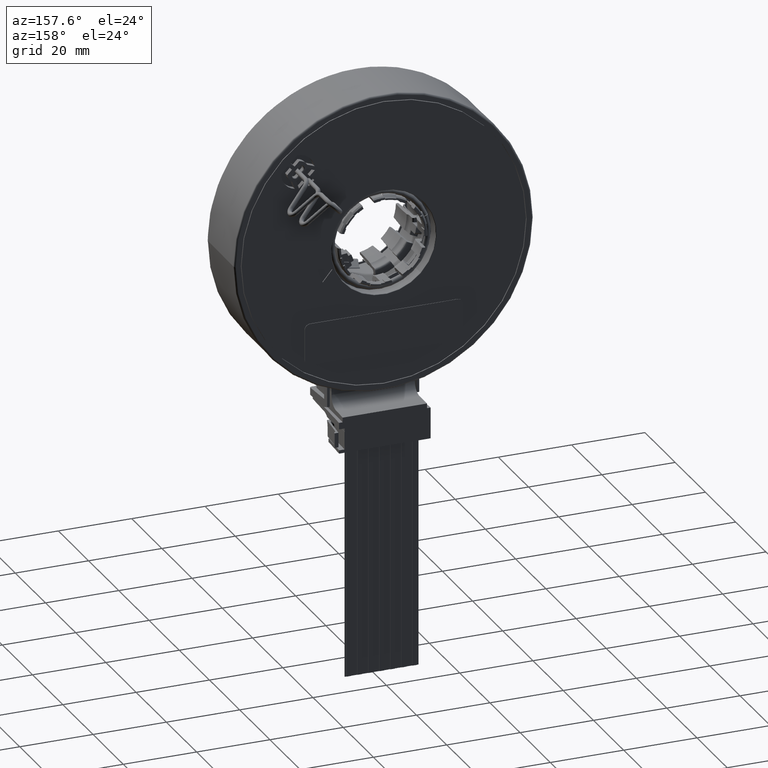
[diagram: clean part render]
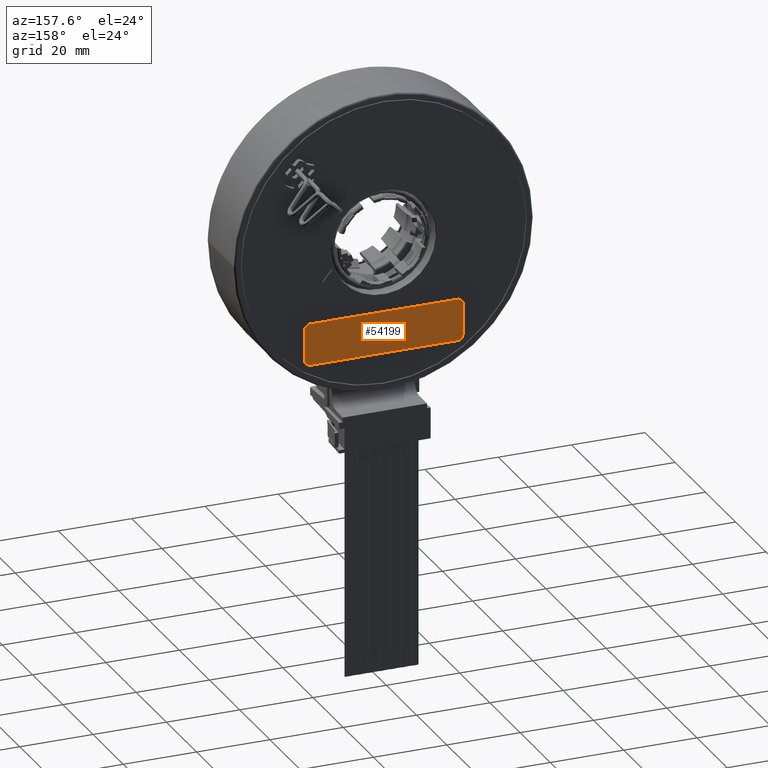
[diagram: same view with one face highlighted and labeled with its STEP entity id]
A machine part, auxiliary view. The second image highlights one B-rep face of the part: STEP entity #54199.
In plain terms, the highlighted planar face has unit normal (0, 1, 0).
Its self-contained STEP definition (entity closure, byte-faithful):
#22266=CARTESIAN_POINT('',(-7.9E-1,7.24E-1,-1.14E0));
#22267=DIRECTION('',(0.E0,1.E0,0.E0));
#22268=DIRECTION('',(0.E0,0.E0,-1.E0));
#22269=AXIS2_PLACEMENT_3D('',#22266,#22267,#22268);
#22271=DIRECTION('',(-1.E0,0.E0,0.E0));
#22272=VECTOR('',#22271,1.58E0);
#22273=CARTESIAN_POINT('',(7.9E-1,7.24E-1,-1.2E0));
#22274=LINE('',#22273,#22272);
#22275=CARTESIAN_POINT('',(7.9E-1,7.24E-1,-1.14E0));
#22276=DIRECTION('',(0.E0,1.E0,0.E0));
#22277=DIRECTION('',(1.E0,0.E0,1.480297366167E-14));
#22278=AXIS2_PLACEMENT_3D('',#22275,#22276,#22277);
#22280=DIRECTION('',(0.E0,0.E0,-1.E0));
#22281=VECTOR('',#22280,3.3E-1);
#22282=CARTESIAN_POINT('',(8.5E-1,7.24E-1,-8.1E-1));
#22283=LINE('',#22282,#22281);
#22284=CARTESIAN_POINT('',(7.9E-1,7.24E-1,-8.1E-1));
#22285=DIRECTION('',(0.E0,1.E0,0.E0));
#22286=DIRECTION('',(0.E0,0.E0,1.E0));
#22287=AXIS2_PLACEMENT_3D('',#22284,#22285,#22286);
#22289=DIRECTION('',(1.E0,0.E0,0.E0));
#22290=VECTOR('',#22289,1.58E0);
#22291=CARTESIAN_POINT('',(-7.9E-1,7.24E-1,-7.5E-1));
#22292=LINE('',#22291,#22290);
#22293=CARTESIAN_POINT('',(-7.9E-1,7.24E-1,-8.1E-1));
#22294=DIRECTION('',(0.E0,1.E0,0.E0));
#22295=DIRECTION('',(-1.E0,0.E0,-1.665334536938E-14));
#22296=AXIS2_PLACEMENT_3D('',#22293,#22294,#22295);
#22298=DIRECTION('',(0.E0,0.E0,1.E0));
#22299=VECTOR('',#22298,3.3E-1);
#22300=CARTESIAN_POINT('',(-8.5E-1,7.24E-1,-1.14E0));
#22301=LINE('',#22300,#22299);
#29803=CARTESIAN_POINT('',(-7.9E-1,7.24E-1,-1.2E0));
#29804=CARTESIAN_POINT('',(-8.5E-1,7.24E-1,-1.14E0));
#29805=VERTEX_POINT('',#29803);
#29806=VERTEX_POINT('',#29804);
#29807=CARTESIAN_POINT('',(-8.5E-1,7.24E-1,-8.1E-1));
#29808=CARTESIAN_POINT('',(-7.9E-1,7.24E-1,-7.5E-1));
#29809=VERTEX_POINT('',#29807);
#29810=VERTEX_POINT('',#29808);
#29811=CARTESIAN_POINT('',(7.9E-1,7.24E-1,-7.5E-1));
#29812=CARTESIAN_POINT('',(8.5E-1,7.24E-1,-8.1E-1));
#29813=VERTEX_POINT('',#29811);
#29814=VERTEX_POINT('',#29812);
#29815=CARTESIAN_POINT('',(8.5E-1,7.24E-1,-1.14E0));
#29816=CARTESIAN_POINT('',(7.9E-1,7.24E-1,-1.2E0));
#29817=VERTEX_POINT('',#29815);
#29818=VERTEX_POINT('',#29816);
#54184=CARTESIAN_POINT('',(0.E0,7.24E-1,-1.2E0));
#54185=DIRECTION('',(0.E0,1.E0,0.E0));
#54186=DIRECTION('',(-1.E0,0.E0,0.E0));
#54187=AXIS2_PLACEMENT_3D('',#54184,#54185,#54186);
#54188=PLANE('',#54187);
#54189=ORIENTED_EDGE('',*,*,#54178,.F.);
#54190=ORIENTED_EDGE('',*,*,#54080,.F.);
#54191=ORIENTED_EDGE('',*,*,#54095,.F.);
#54192=ORIENTED_EDGE('',*,*,#54109,.F.);
#54193=ORIENTED_EDGE('',*,*,#54123,.F.);
#54194=ORIENTED_EDGE('',*,*,#54137,.F.);
#54195=ORIENTED_EDGE('',*,*,#54151,.F.);
#54196=ORIENTED_EDGE('',*,*,#54165,.F.);
#54197=EDGE_LOOP('',(#54189,#54190,#54191,#54192,#54193,#54194,#54195,#54196));
#54198=FACE_OUTER_BOUND('',#54197,.F.);
#54199=ADVANCED_FACE('',(#54198),#54188,.T.);
#22270=CIRCLE('',#22269,6.E-2);
#22279=CIRCLE('',#22278,6.E-2);
#22288=CIRCLE('',#22287,6.E-2);
#22297=CIRCLE('',#22296,6.E-2);
#54080=EDGE_CURVE('',#29818,#29805,#22274,.T.);
#54095=EDGE_CURVE('',#29817,#29818,#22279,.T.);
#54109=EDGE_CURVE('',#29814,#29817,#22283,.T.);
#54123=EDGE_CURVE('',#29813,#29814,#22288,.T.);
#54137=EDGE_CURVE('',#29810,#29813,#22292,.T.);
#54151=EDGE_CURVE('',#29809,#29810,#22297,.T.);
#54165=EDGE_CURVE('',#29806,#29809,#22301,.T.);
#54178=EDGE_CURVE('',#29805,#29806,#22270,.T.);